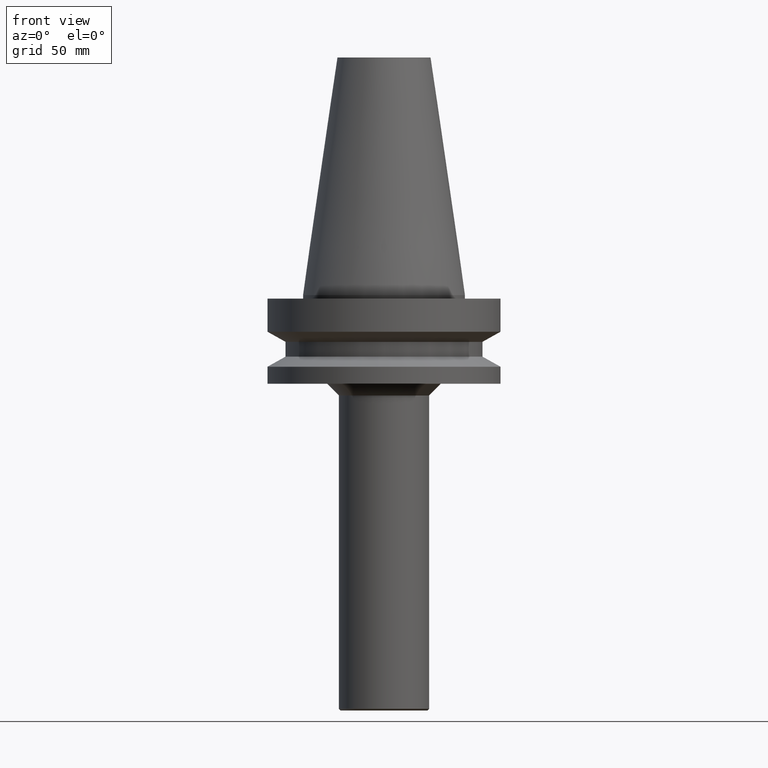
[diagram: clean part render]
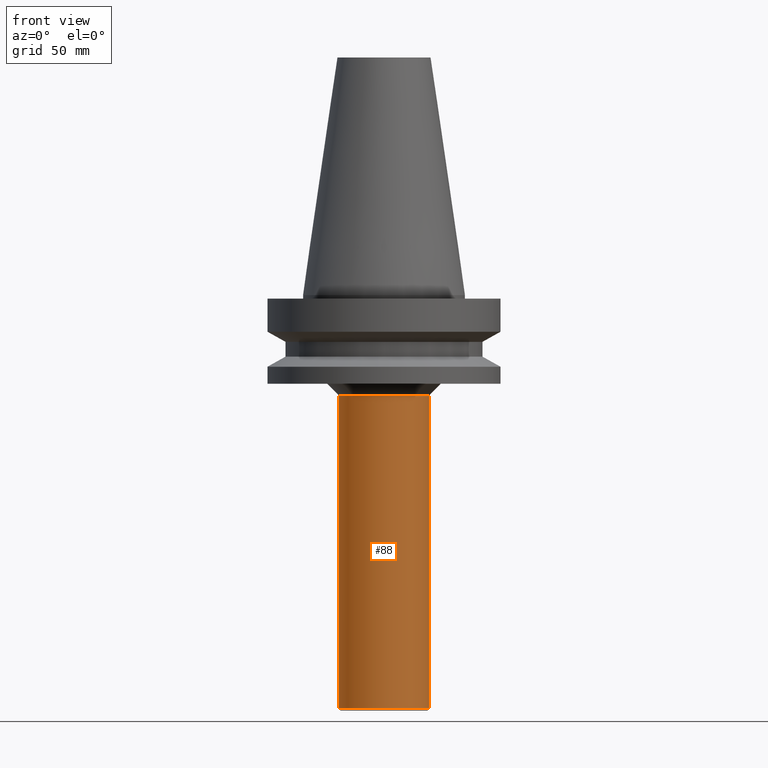
[diagram: same view with one face highlighted and labeled with its STEP entity id]
A machine part, front view. The second image highlights one B-rep face of the part: STEP entity #88.
In plain terms, the highlighted cylindrical surface (bore or boss wall) has radius 19.5 mm, axis along (-0, -0, 1).
Its self-contained STEP definition (entity closure, byte-faithful):
#88=ADVANCED_FACE('',(#127,#128),#129,.T.);
#127=FACE_BOUND('',#167,.T.);
#128=FACE_BOUND('',#168,.T.);
#129=CYLINDRICAL_SURFACE('',#169,19.5);
#167=EDGE_LOOP('',(#233));
#168=EDGE_LOOP('',(#234));
#169=AXIS2_PLACEMENT_3D('',#235,#236,#237);
#233=ORIENTED_EDGE('',*,*,#239,.F.);
#234=ORIENTED_EDGE('',*,*,#250,.T.);
#235=CARTESIAN_POINT('',(6.74321143780515E-015,1.34864228756103E-014,-110.125000000001));
#236=DIRECTION('',(-6.12323399573677E-017,-1.22464679914735E-016,1.0));
#237=DIRECTION('',(-1.23259516440783E-032,1.0,1.22464679914735E-016));
#239=EDGE_CURVE('',#253,#253,#254,.T.);
#250=EDGE_CURVE('',#275,#275,#276,.T.);
#253=VERTEX_POINT('',#279);
#254=CIRCLE('',#280,19.5);
#275=VERTEX_POINT('',#301);
#276=CIRCLE('',#302,19.5);
#279=CARTESIAN_POINT('',(1.08534322574435E-014,19.5,-177.250000000001));
#280=AXIS2_PLACEMENT_3D('',#306,#307,#308);
#301=CARTESIAN_POINT('',(2.63299061816685E-015,19.5,-43.0000000000006));
#302=AXIS2_PLACEMENT_3D('',#339,#340,#341);
#306=CARTESIAN_POINT('',(1.08534322574435E-014,2.17068645148869E-014,-177.250000000001));
#307=DIRECTION('',(6.12323399573677E-017,1.22464679914735E-016,-1.0));
#308=DIRECTION('',(-1.23259516440783E-032,1.0,1.22464679914735E-016));
#339=CARTESIAN_POINT('',(2.63299061816685E-015,5.26598123633369E-015,-43.0000000000006));
#340=DIRECTION('',(6.12323399573677E-017,1.22464679914735E-016,-1.0));
#341=DIRECTION('',(-1.23259516440783E-032,1.0,1.22464679914735E-016));